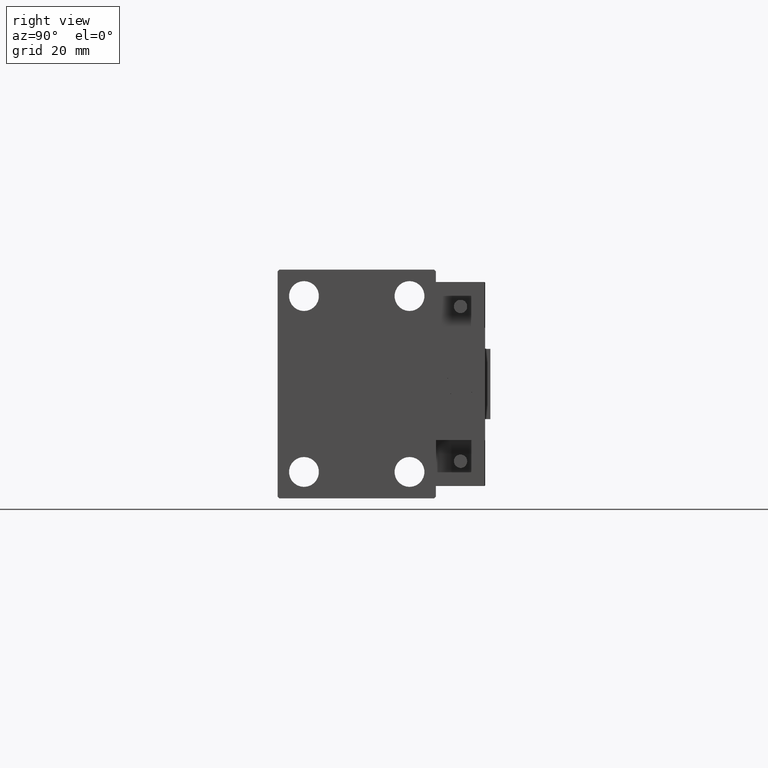
[diagram: clean part render]
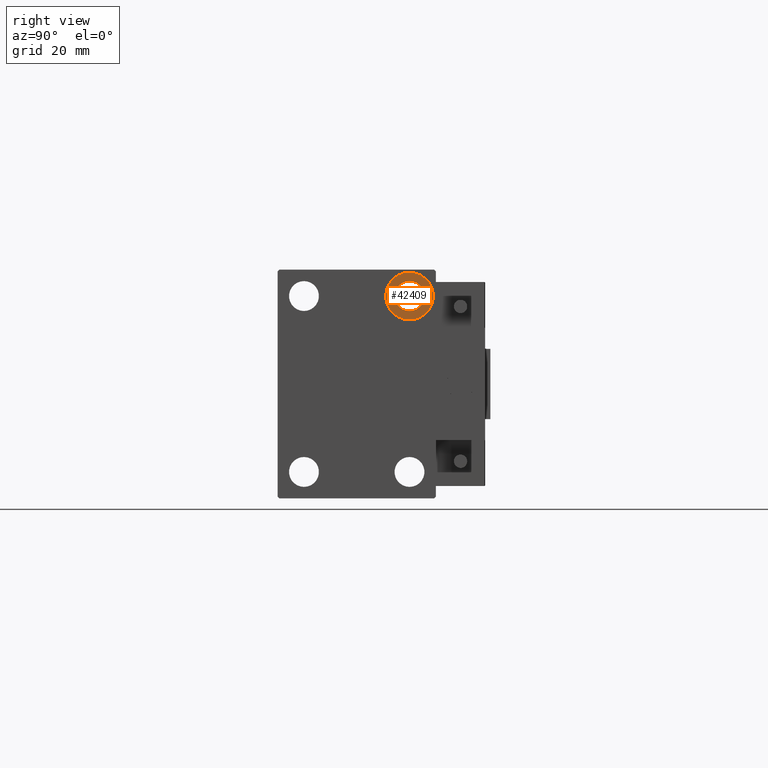
[diagram: same view with one face highlighted and labeled with its STEP entity id]
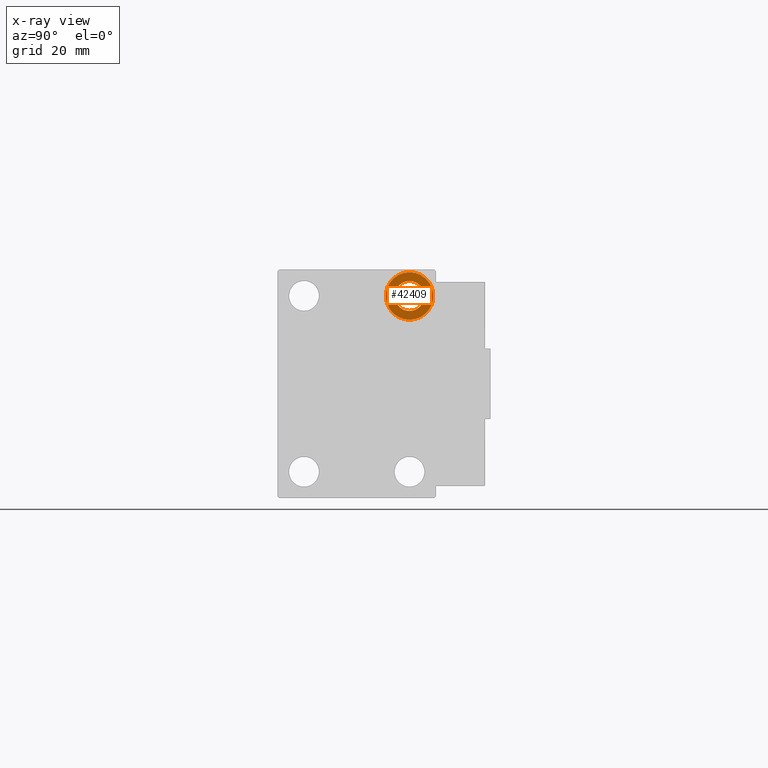
[diagram: x-ray of the same camera — body ghosted, the highlighted face saturated]
A machine part, right view. The second image highlights one B-rep face of the part: STEP entity #42409.
The next image is the same camera in x-ray: the body ghosted, the highlighted face saturated — about 0% of this face is hidden behind the body in this view.
In plain terms, the highlighted planar face has unit normal (1, 0, 0).
Its self-contained STEP definition (entity closure, byte-faithful):
#983 = DIRECTION ( 'NONE',  ( -1.000000000000000000, -0.000000000000000000, -0.000000000000000000 ) ) ;
#1494 = CARTESIAN_POINT ( 'NONE',  ( 61.00000000000000711, 15.00000000000000355, 20.75000000000000355 ) ) ;
#2205 = VERTEX_POINT ( 'NONE', #16080 ) ;
#3343 = DIRECTION ( 'NONE',  ( 1.000000000000000000, 0.000000000000000000, -0.000000000000000000 ) ) ;
#5112 = CIRCLE ( 'NONE', #35153, 4.249999999999996447 ) ;
#10201 = VERTEX_POINT ( 'NONE', #1494 ) ;
#10246 = EDGE_CURVE ( 'NONE', #10201, #2205, #5112, .T. ) ;
#11390 = PLANE ( 'NONE',  #12480 ) ;
#11615 = DIRECTION ( 'NONE',  ( 0.000000000000000000, 0.000000000000000000, -1.000000000000000000 ) ) ;
#12480 = AXIS2_PLACEMENT_3D ( 'NONE', #44213, #3343, #48511 ) ;
#12849 = EDGE_CURVE ( 'NONE', #51513, #15547, #29984, .T. ) ;
#14872 = CARTESIAN_POINT ( 'NONE',  ( 61.00000000000000711, 15.00000000000000355, 25.00000000000000000 ) ) ;
#15547 = VERTEX_POINT ( 'NONE', #31379 ) ;
#16080 = CARTESIAN_POINT ( 'NONE',  ( 61.00000000000000711, 15.00000000000000355, 29.25000000000000000 ) ) ;
#16836 = DIRECTION ( 'NONE',  ( 0.000000000000000000, 0.000000000000000000, 1.000000000000000000 ) ) ;
#17041 = ORIENTED_EDGE ( 'NONE', *, *, #26889, .T. ) ;
#17080 = CARTESIAN_POINT ( 'NONE',  ( 61.00000000000000711, 15.00000000000000355, 25.00000000000000000 ) ) ;
#19958 = DIRECTION ( 'NONE',  ( 0.000000000000000000, 0.000000000000000000, -1.000000000000000000 ) ) ;
#20064 = CARTESIAN_POINT ( 'NONE',  ( 61.00000000000000711, 15.00000000000000355, 25.00000000000000000 ) ) ;
#21351 = ORIENTED_EDGE ( 'NONE', *, *, #10246, .T. ) ;
#21769 = EDGE_LOOP ( 'NONE', ( #17041, #21351 ) ) ;
#23508 = FACE_OUTER_BOUND ( 'NONE', #45178, .T. ) ;
#23746 = ORIENTED_EDGE ( 'NONE', *, *, #23835, .F. ) ;
#23835 = EDGE_CURVE ( 'NONE', #15547, #51513, #35566, .T. ) ;
#23949 = AXIS2_PLACEMENT_3D ( 'NONE', #17080, #983, #50171 ) ;
#26065 = ORIENTED_EDGE ( 'NONE', *, *, #12849, .F. ) ;
#26889 = EDGE_CURVE ( 'NONE', #2205, #10201, #31274, .T. ) ;
#29984 = CIRCLE ( 'NONE', #23949, 6.749999999999999112 ) ;
#31274 = CIRCLE ( 'NONE', #38986, 4.249999999999996447 ) ;
#31278 = AXIS2_PLACEMENT_3D ( 'NONE', #20064, #36475, #16836 ) ;
#31379 = CARTESIAN_POINT ( 'NONE',  ( 61.00000000000000711, 15.00000000000000355, 18.25000000000000355 ) ) ;
#35153 = AXIS2_PLACEMENT_3D ( 'NONE', #14872, #35846, #19958 ) ;
#35566 = CIRCLE ( 'NONE', #31278, 6.749999999999999112 ) ;
#35846 = DIRECTION ( 'NONE',  ( -1.000000000000000000, -0.000000000000000000, -0.000000000000000000 ) ) ;
#36475 = DIRECTION ( 'NONE',  ( -1.000000000000000000, -0.000000000000000000, -0.000000000000000000 ) ) ;
#38986 = AXIS2_PLACEMENT_3D ( 'NONE', #41188, #48467, #11615 ) ;
#39916 = FACE_BOUND ( 'NONE', #21769, .T. ) ;
#41188 = CARTESIAN_POINT ( 'NONE',  ( 61.00000000000000711, 15.00000000000000355, 25.00000000000000000 ) ) ;
#42409 = ADVANCED_FACE ( 'NONE', ( #23508, #39916 ), #11390, .T. ) ;
#44213 = CARTESIAN_POINT ( 'NONE',  ( 61.00000000000000711, 0.000000000000000000, 0.000000000000000000 ) ) ;
#45178 = EDGE_LOOP ( 'NONE', ( #23746, #26065 ) ) ;
#45749 = CARTESIAN_POINT ( 'NONE',  ( 61.00000000000000711, 15.00000000000000355, 31.75000000000000000 ) ) ;
#48467 = DIRECTION ( 'NONE',  ( -1.000000000000000000, -0.000000000000000000, -0.000000000000000000 ) ) ;
#48511 = DIRECTION ( 'NONE',  ( 0.000000000000000000, 0.000000000000000000, 1.000000000000000000 ) ) ;
#50171 = DIRECTION ( 'NONE',  ( 0.000000000000000000, 0.000000000000000000, 1.000000000000000000 ) ) ;
#51513 = VERTEX_POINT ( 'NONE', #45749 ) ;